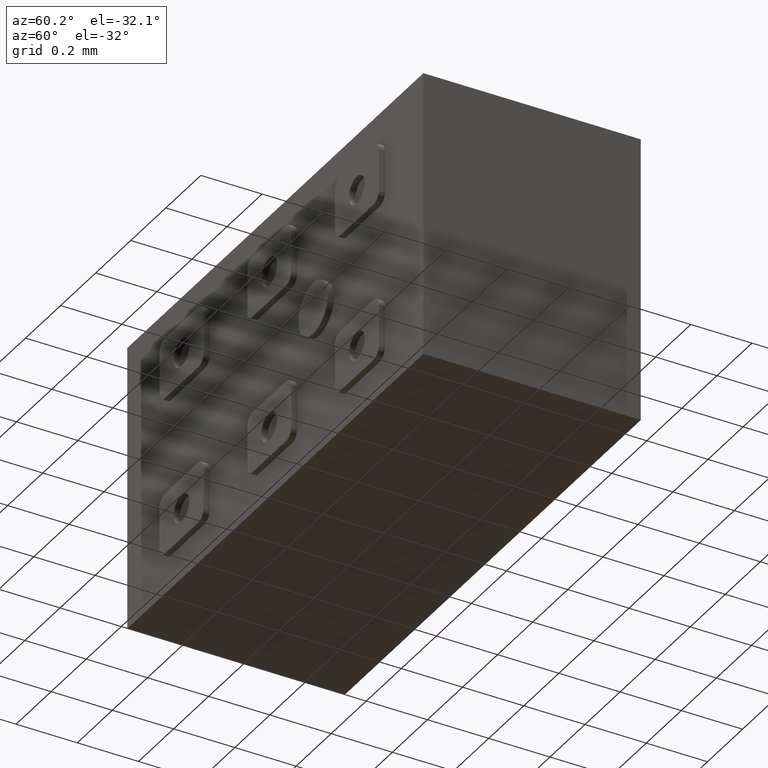
[diagram: clean part render]
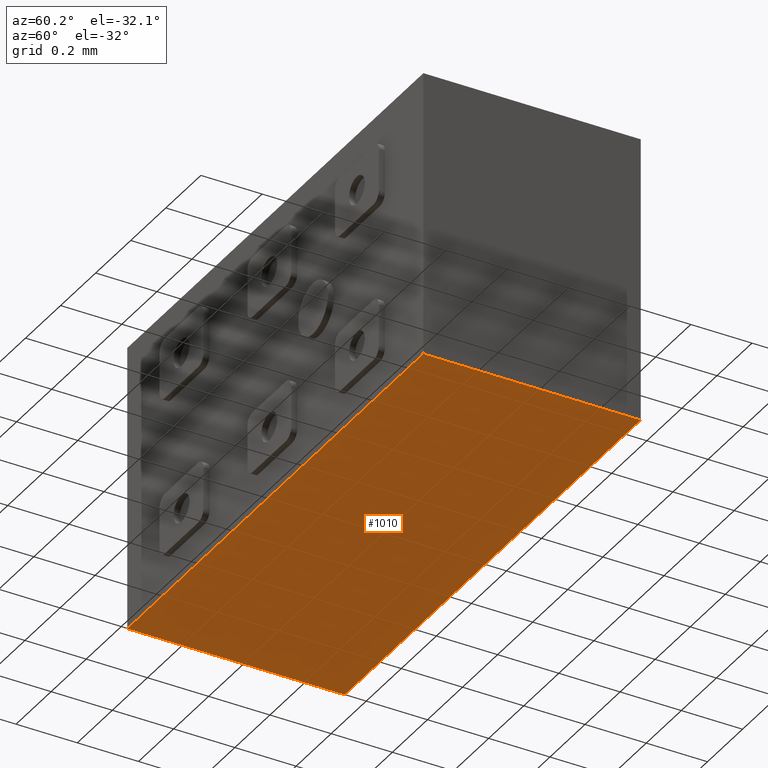
[diagram: same view with one face highlighted and labeled with its STEP entity id]
A machine part, auxiliary view. The second image highlights one B-rep face of the part: STEP entity #1010.
In plain terms, the highlighted planar face has unit normal (0, -0, 1).
Its self-contained STEP definition (entity closure, byte-faithful):
#12 = PLANE ( 'NONE',  #1130 ) ;
#72 = CARTESIAN_POINT ( 'NONE',  ( -0.8445000000000000284, 0.3549999999999999822, -0.4694999999999999174 ) ) ;
#142 = VERTEX_POINT ( 'NONE', #1654 ) ;
#425 = DIRECTION ( 'NONE',  ( 1.000000000000000000, 0.000000000000000000, -1.925758743313507422E-16 ) ) ;
#542 = VERTEX_POINT ( 'NONE', #1954 ) ;
#622 = VECTOR ( 'NONE', #1813, 1000.000000000000000 ) ;
#628 = CARTESIAN_POINT ( 'NONE',  ( 0.8445000000000000284, 0.3549999999999999822, -0.4695000000000002505 ) ) ;
#766 = DIRECTION ( 'NONE',  ( -1.000000000000000000, 0.000000000000000000, 1.925758743313506929E-16 ) ) ;
#847 = EDGE_LOOP ( 'NONE', ( #1396, #1153, #2350, #1720 ) ) ;
#979 = VECTOR ( 'NONE', #2456, 1000.000000000000000 ) ;
#993 = LINE ( 'NONE', #1406, #2126 ) ;
#1010 = ADVANCED_FACE ( 'NONE', ( #2403 ), #12, .F. ) ;
#1024 = CARTESIAN_POINT ( 'NONE',  ( 0.8445000000000000284, 0.3549999999999999822, -0.4695000000000002505 ) ) ;
#1030 = CARTESIAN_POINT ( 'NONE',  ( 0.8445000000000000284, -0.3549999999999999822, -0.4695000000000002505 ) ) ;
#1130 = AXIS2_PLACEMENT_3D ( 'NONE', #628, #2196, #425 ) ;
#1153 = ORIENTED_EDGE ( 'NONE', *, *, #2443, .F. ) ;
#1313 = VERTEX_POINT ( 'NONE', #1344 ) ;
#1344 = CARTESIAN_POINT ( 'NONE',  ( -0.8445000000000000284, 0.3549999999999999822, -0.4694999999999999174 ) ) ;
#1396 = ORIENTED_EDGE ( 'NONE', *, *, #2453, .T. ) ;
#1406 = CARTESIAN_POINT ( 'NONE',  ( 0.8445000000000000284, 0.3549999999999999822, -0.4695000000000002505 ) ) ;
#1645 = LINE ( 'NONE', #72, #2519 ) ;
#1654 = CARTESIAN_POINT ( 'NONE',  ( 0.8445000000000000284, -0.3549999999999999822, -0.4695000000000002505 ) ) ;
#1672 = LINE ( 'NONE', #2420, #979 ) ;
#1720 = ORIENTED_EDGE ( 'NONE', *, *, #2059, .T. ) ;
#1801 = EDGE_CURVE ( 'NONE', #2115, #1313, #993, .T. ) ;
#1813 = DIRECTION ( 'NONE',  ( -1.000000000000000000, 0.000000000000000000, 1.925758743313506929E-16 ) ) ;
#1954 = CARTESIAN_POINT ( 'NONE',  ( -0.8445000000000000284, -0.3549999999999999822, -0.4694999999999999174 ) ) ;
#2036 = DIRECTION ( 'NONE',  ( -0.000000000000000000, -1.000000000000000000, -0.000000000000000000 ) ) ;
#2059 = EDGE_CURVE ( 'NONE', #2115, #142, #1672, .T. ) ;
#2115 = VERTEX_POINT ( 'NONE', #1024 ) ;
#2126 = VECTOR ( 'NONE', #766, 1000.000000000000000 ) ;
#2196 = DIRECTION ( 'NONE',  ( 1.925758743313507422E-16, -0.000000000000000000, 1.000000000000000000 ) ) ;
#2350 = ORIENTED_EDGE ( 'NONE', *, *, #1801, .F. ) ;
#2403 = FACE_OUTER_BOUND ( 'NONE', #847, .T. ) ;
#2420 = CARTESIAN_POINT ( 'NONE',  ( 0.8445000000000000284, 0.3549999999999999822, -0.4695000000000002505 ) ) ;
#2441 = LINE ( 'NONE', #1030, #622 ) ;
#2443 = EDGE_CURVE ( 'NONE', #1313, #542, #1645, .T. ) ;
#2453 = EDGE_CURVE ( 'NONE', #142, #542, #2441, .T. ) ;
#2456 = DIRECTION ( 'NONE',  ( -0.000000000000000000, -1.000000000000000000, -0.000000000000000000 ) ) ;
#2519 = VECTOR ( 'NONE', #2036, 1000.000000000000000 ) ;